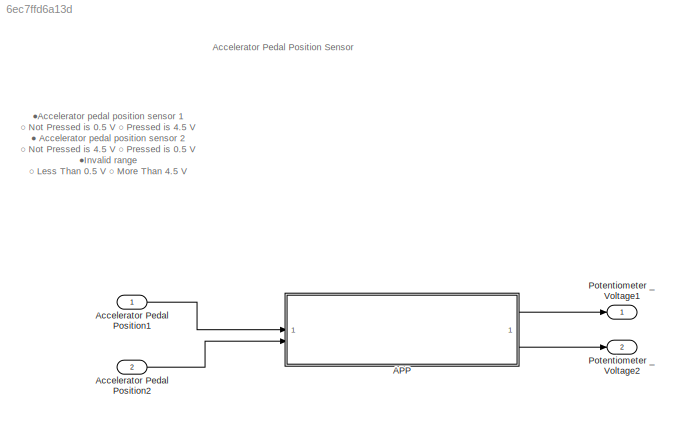
MODEL slx_6ec7ffd6a13d
KIND model
CONFIG AbsTol = auto
CONFIG EnableMultiTasking = off
CONFIG FixedStep = auto
CONFIG MaxStep = auto
CONFIG MinStep = auto
CONFIG RelTol = 1e-3
CONFIG SampleTimeConstraint = Unconstrained
CONFIG SolverName = FixedStepAuto
CONFIG StartTime = 0.0
CONFIG StopTime = 10.0
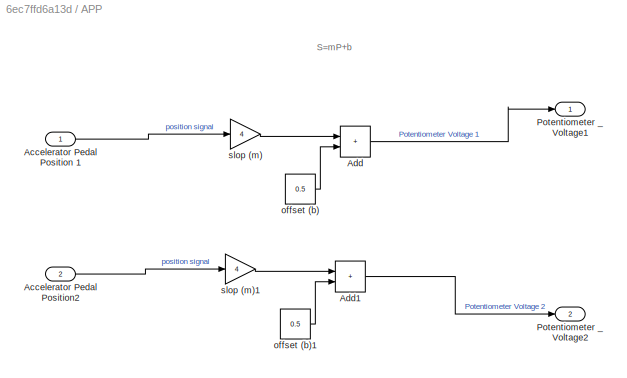
BLOCK [SubSystem] APP
BLOCK [Inport] APP/Accelerator Pedal Position 1
BLOCK [Inport] APP/Accelerator Pedal Position2
  Port = 2
BLOCK [Sum] APP/Add
  IconShape = rectangular
BLOCK [Sum] APP/Add1
  IconShape = rectangular
BLOCK [Outport] APP/Potentiometer _ Voltage1
BLOCK [Outport] APP/Potentiometer _ Voltage2
  NameLocation = right
  Port = 2
BLOCK [Constant] APP/offset (b)
  Value = 0.5
BLOCK [Constant] APP/offset (b)1
  Value = 0.5
BLOCK [Gain] APP/slop (m)
  Gain = 4
BLOCK [Gain] APP/slop (m)1
  Gain = 4
BLOCK [Inport] Accelerator Pedal Position1
BLOCK [Inport] Accelerator Pedal Position2
  Port = 2
BLOCK [Outport] Potentiometer _ Voltage1
BLOCK [Outport] Potentiometer _ Voltage2
  Port = 2
ANNOTATION (root): ●Accelerator pedal position sensor 1 ○ Not Pressed is 0.5 V ○ Pressed is 4.5 V ● Accelerator pedal position sensor 2 ○ Not Pressed is 4.5 V ○ Pressed is 0.5 V ● Invalid range ○ Less Than 0.5 V ○ More Than 4.5 V
ANNOTATION (root): Accelerator Pedal Position Sensor
ANNOTATION APP: S=mP+b
LINE APP/Accelerator Pedal Position 1:1 -> APP/slop (m):1
LINE APP/Accelerator Pedal Position2:1 -> APP/slop (m)1:1
LINE APP/Add1:1 -> APP/Potentiometer _ Voltage2:1
LINE APP/Add:1 -> APP/Potentiometer _ Voltage1:1
LINE APP/offset (b)1:1 -> APP/Add1:2
LINE APP/offset (b):1 -> APP/Add:2
LINE APP/slop (m)1:1 -> APP/Add1:1
LINE APP/slop (m):1 -> APP/Add:1
LINE APP:1 -> Potentiometer _ Voltage1:1
LINE APP:2 -> Potentiometer _ Voltage2:1
LINE Accelerator Pedal Position1:1 -> APP:1
LINE Accelerator Pedal Position2:1 -> APP:2
